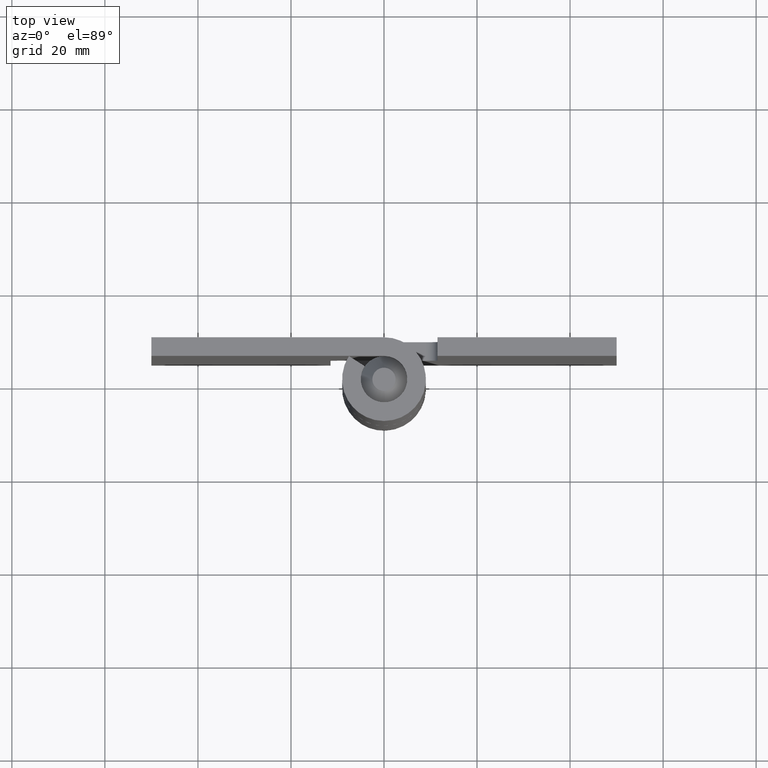
[diagram: clean part render]
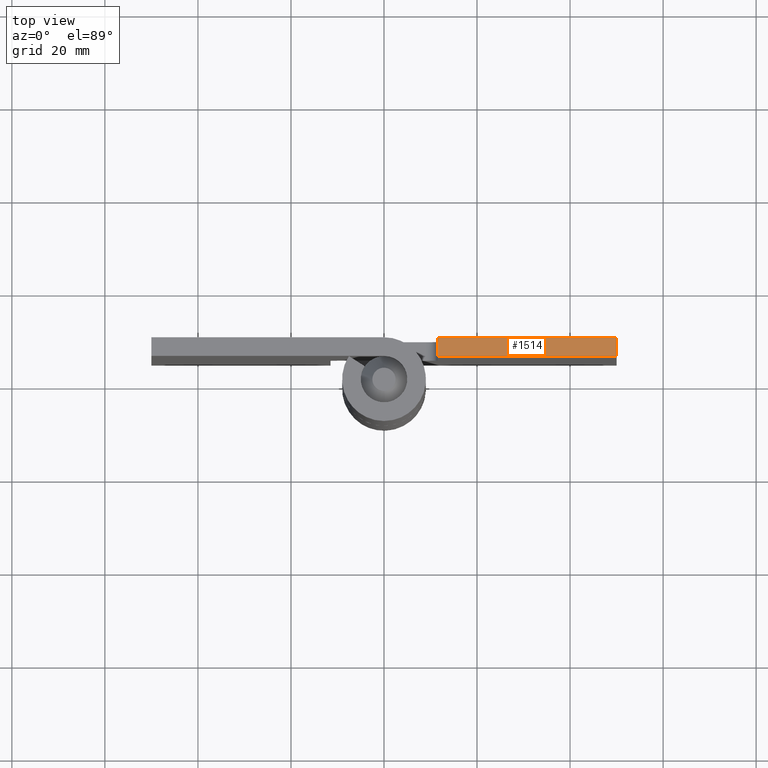
[diagram: same view with one face highlighted and labeled with its STEP entity id]
A machine part, top view. The second image highlights one B-rep face of the part: STEP entity #1514.
In plain terms, the highlighted face is a freeform B-spline surface patch.
Its self-contained STEP definition (entity closure, byte-faithful):
#1333=CARTESIAN_POINT('',(11.500000000000000,9.0,120.000015000000000));
#1334=VERTEX_POINT('',#1333);
#1335=CARTESIAN_POINT('',(11.500000000000000,5.0,120.000015000000000));
#1336=VERTEX_POINT('',#1335);
#1337=CARTESIAN_POINT('',(11.500000000000000,9.0,120.000015000000000));
#1338=CARTESIAN_POINT('',(11.500000000000000,5.0,120.000015000000000));
#1339=QUASI_UNIFORM_CURVE('',1,(#1337,#1338),.UNSPECIFIED.,.F.,.U.);
#1340=EDGE_CURVE('',#1334,#1336,#1339,.T.);
#1487=CARTESIAN_POINT('',(9.576925074620473,4.800200007752776,120.000015000000000));
#1488=CARTESIAN_POINT('',(51.923075958029997,4.800200007752776,120.000015000000000));
#1489=CARTESIAN_POINT('',(9.576925074620473,9.199800099535585,120.000015000000000));
#1490=CARTESIAN_POINT('',(51.923075958029997,9.199800099535585,120.000015000000000));
#1491=B_SPLINE_SURFACE_WITH_KNOTS('',1,1,((#1487,#1489),(#1488,#1490)),.UNSPECIFIED.,.F.,.F.,.U.,(2,2),(2,2),(0.0,42.346150883409521),(0.0,4.399600091782808),.UNSPECIFIED.);
#1492=CARTESIAN_POINT('',(50.0,9.0,120.000015000000000));
#1493=VERTEX_POINT('',#1492);
#1494=CARTESIAN_POINT('',(11.500000000000000,9.0,120.000015000000000));
#1495=CARTESIAN_POINT('',(50.0,9.0,120.000015000000000));
#1496=QUASI_UNIFORM_CURVE('',1,(#1494,#1495),.UNSPECIFIED.,.F.,.U.);
#1497=EDGE_CURVE('',#1334,#1493,#1496,.T.);
#1498=ORIENTED_EDGE('',*,*,#1497,.F.);
#1499=ORIENTED_EDGE('',*,*,#1340,.T.);
#1500=CARTESIAN_POINT('',(50.0,5.0,120.000015000000000));
#1501=VERTEX_POINT('',#1500);
#1502=CARTESIAN_POINT('',(50.0,5.0,120.000015000000000));
#1503=CARTESIAN_POINT('',(11.500000000000000,5.0,120.000015000000000));
#1504=QUASI_UNIFORM_CURVE('',1,(#1502,#1503),.UNSPECIFIED.,.F.,.U.);
#1505=EDGE_CURVE('',#1501,#1336,#1504,.T.);
#1506=ORIENTED_EDGE('',*,*,#1505,.F.);
#1507=CARTESIAN_POINT('',(50.0,9.0,120.000015000000000));
#1508=CARTESIAN_POINT('',(50.0,5.0,120.000015000000000));
#1509=QUASI_UNIFORM_CURVE('',1,(#1507,#1508),.UNSPECIFIED.,.F.,.U.);
#1510=EDGE_CURVE('',#1493,#1501,#1509,.T.);
#1511=ORIENTED_EDGE('',*,*,#1510,.F.);
#1512=EDGE_LOOP('',(#1498,#1499,#1506,#1511));
#1513=FACE_OUTER_BOUND('',#1512,.T.);
#1514=ADVANCED_FACE('',(#1513),#1491,.T.);